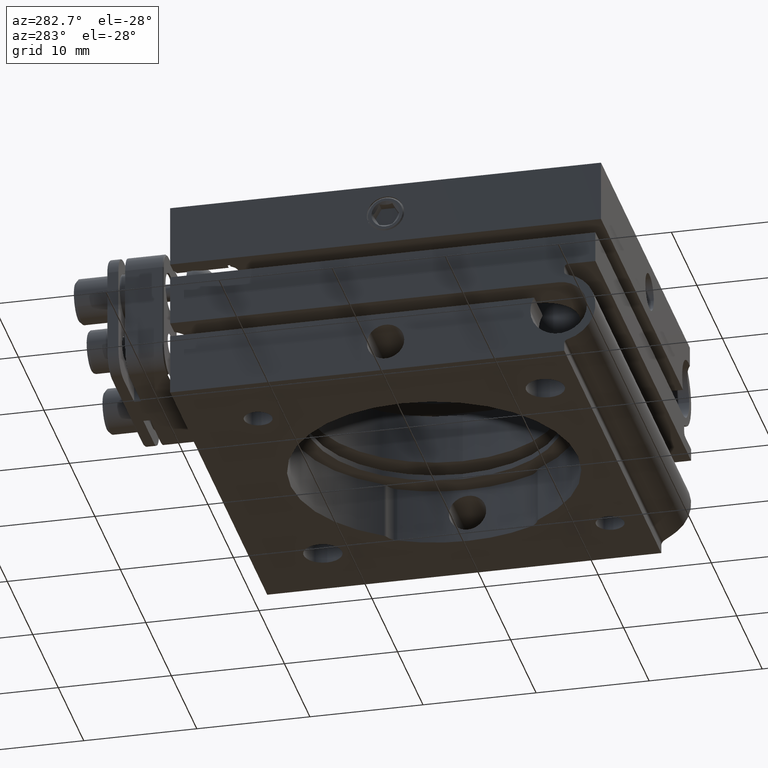
[diagram: clean part render]
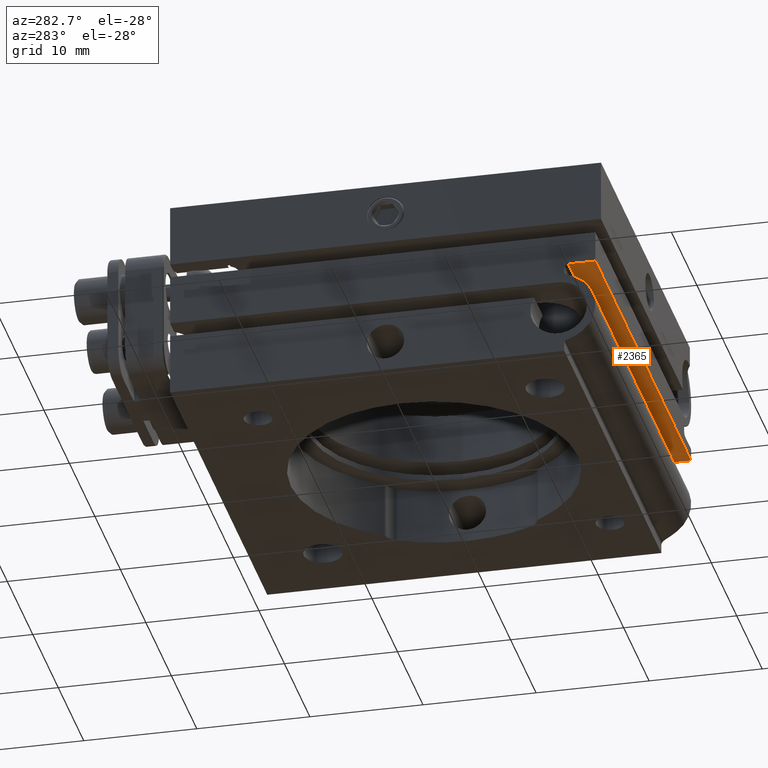
[diagram: same view with one face highlighted and labeled with its STEP entity id]
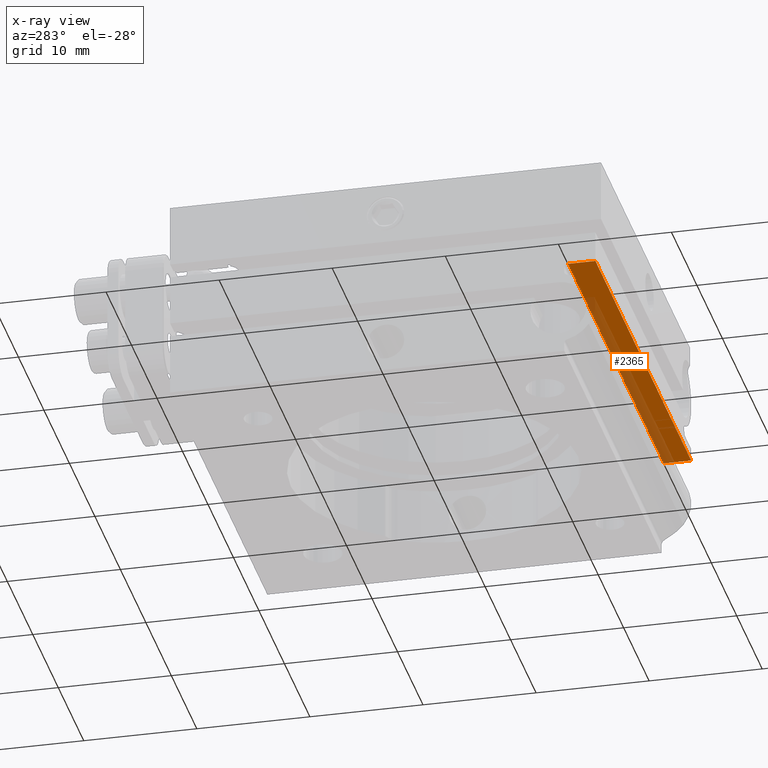
[diagram: x-ray of the same camera — body ghosted, the highlighted face saturated]
A machine part, auxiliary view. The second image highlights one B-rep face of the part: STEP entity #2365.
The next image is the same camera in x-ray: the body ghosted, the highlighted face saturated — about 31% of this face is hidden behind the body in this view.
In plain terms, the highlighted planar face has unit normal (-0, -0, 1).
Its self-contained STEP definition (entity closure, byte-faithful):
#28 = ORIENTED_EDGE ( 'NONE', *, *, #10417, .F. ) ;
#153 = ORIENTED_EDGE ( 'NONE', *, *, #8058, .F. ) ;
#334 = EDGE_LOOP ( 'NONE', ( #4949, #1918, #153, #28 ) ) ;
#1011 = DIRECTION ( 'NONE',  ( -6.388754070904234775E-31, -7.792911615157350690E-17, 1.000000000000000000 ) ) ;
#1020 = LINE ( 'NONE', #8513, #9502 ) ;
#1153 = CARTESIAN_POINT ( 'NONE',  ( 18.54999999999984439, -16.14999999999985292, -0.5499999999999988232 ) ) ;
#1918 = ORIENTED_EDGE ( 'NONE', *, *, #8022, .T. ) ;
#2365 = ADVANCED_FACE ( 'NONE', ( #6038 ), #8400, .F. ) ;
#2774 = EDGE_CURVE ( 'NONE', #4256, #6223, #7633, .T. ) ;
#3570 = DIRECTION ( 'NONE',  ( 4.718447854656915297E-15, 1.000000000000000000, 7.792911615157350690E-17 ) ) ;
#4256 = VERTEX_POINT ( 'NONE', #9872 ) ;
#4554 = CARTESIAN_POINT ( 'NONE',  ( 18.54999999999984794, -18.54999999999985505, -0.5500000000000009326 ) ) ;
#4655 = VERTEX_POINT ( 'NONE', #9699 ) ;
#4949 = ORIENTED_EDGE ( 'NONE', *, *, #2774, .T. ) ;
#5159 = DIRECTION ( 'NONE',  ( 1.000000000000000000, 4.496403249731883989E-15, -2.403560570595272096E-31 ) ) ;
#5497 = LINE ( 'NONE', #8607, #6256 ) ;
#5886 = DIRECTION ( 'NONE',  ( -4.718447854656915297E-15, -1.000000000000000000, -7.792911615157350690E-17 ) ) ;
#6038 = FACE_OUTER_BOUND ( 'NONE', #334, .T. ) ;
#6223 = VERTEX_POINT ( 'NONE', #1153 ) ;
#6256 = VECTOR ( 'NONE', #8717, 1000.000000000000000 ) ;
#6754 = CARTESIAN_POINT ( 'NONE',  ( 18.54999999999984439, -15.79999999999985150, -0.5499999999999988232 ) ) ;
#7285 = VECTOR ( 'NONE', #8490, 1000.000000000000000 ) ;
#7622 = VECTOR ( 'NONE', #5886, 1000.000000000000000 ) ;
#7633 = LINE ( 'NONE', #10035, #7285 ) ;
#8022 = EDGE_CURVE ( 'NONE', #6223, #10062, #9263, .T. ) ;
#8058 = EDGE_CURVE ( 'NONE', #4655, #10062, #1020, .T. ) ;
#8400 = PLANE ( 'NONE',  #10159 ) ;
#8490 = DIRECTION ( 'NONE',  ( 1.000000000000000000, 4.496403249731883989E-15, -2.403560570595272096E-31 ) ) ;
#8513 = CARTESIAN_POINT ( 'NONE',  ( 19.04999999999985150, -18.54999999999985150, -0.5499999999999991562 ) ) ;
#8607 = CARTESIAN_POINT ( 'NONE',  ( -19.05000000000015703, -15.80000000000013749, -0.5499999999999988232 ) ) ;
#8717 = DIRECTION ( 'NONE',  ( -4.718447854656915297E-15, -1.000000000000000000, -7.792911615157350690E-17 ) ) ;
#9263 = LINE ( 'NONE', #6754, #7622 ) ;
#9502 = VECTOR ( 'NONE', #5159, 1000.000000000000000 ) ;
#9699 = CARTESIAN_POINT ( 'NONE',  ( -19.05000000000015703, -18.55000000000013571, -0.5499999999999991562 ) ) ;
#9872 = CARTESIAN_POINT ( 'NONE',  ( -19.05000000000015703, -16.15000000000013713, -0.5499999999999988232 ) ) ;
#9945 = CARTESIAN_POINT ( 'NONE',  ( -19.05000000000015703, -15.80000000000013749, -0.5499999999999988232 ) ) ;
#10035 = CARTESIAN_POINT ( 'NONE',  ( 19.04999999999985150, -16.14999999999985292, -0.5499999999999988232 ) ) ;
#10062 = VERTEX_POINT ( 'NONE', #4554 ) ;
#10159 = AXIS2_PLACEMENT_3D ( 'NONE', #9945, #1011, #3570 ) ;
#10417 = EDGE_CURVE ( 'NONE', #4256, #4655, #5497, .T. ) ;